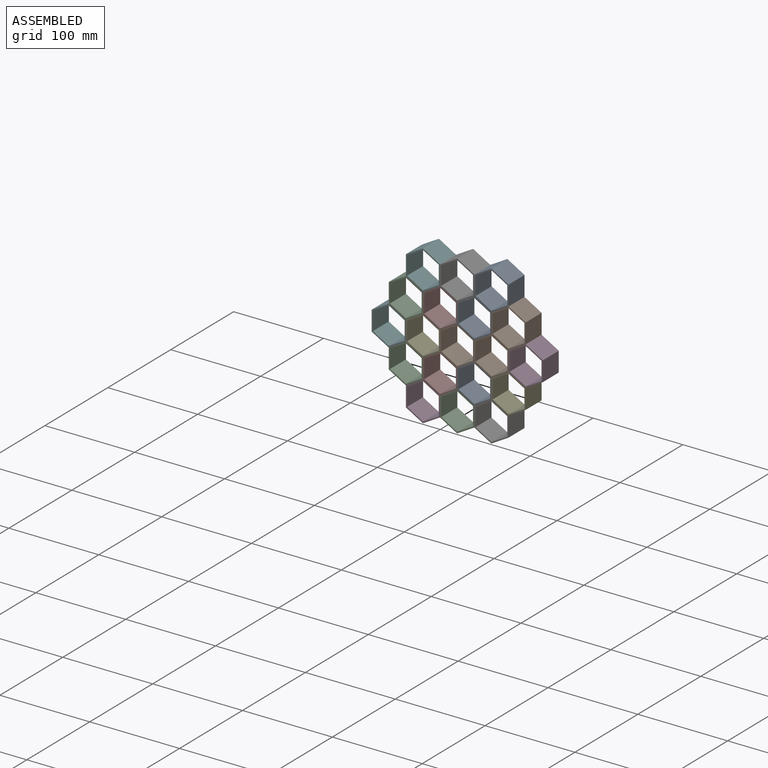
[diagram: assembled view]
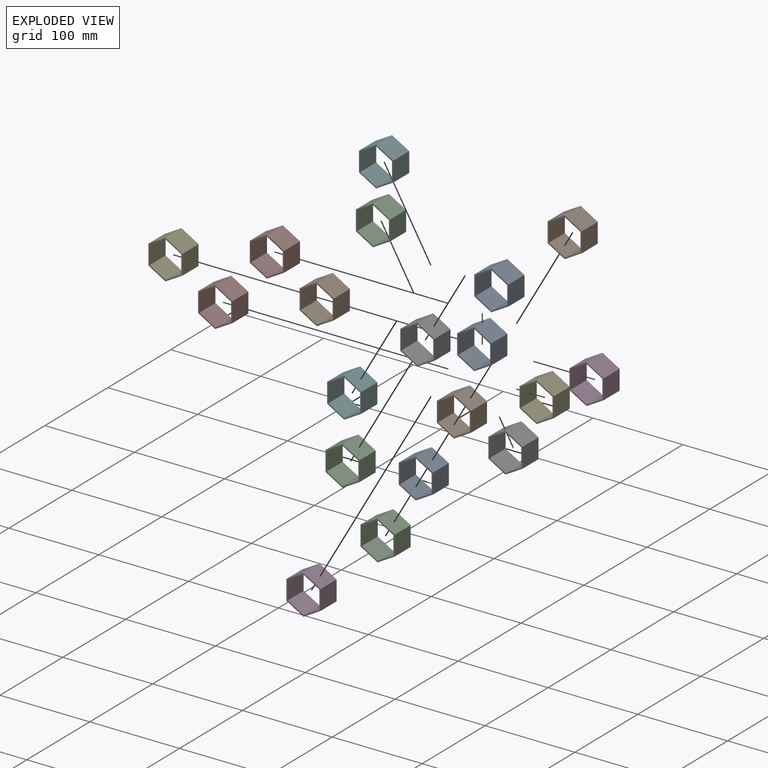
[diagram: exploded view]
GUIDED TOUR — MATED ASSEMBLY (Onshape document c763d03f4cfdfff51981331f, AutoMate assembly c763d03f4cfdfff51981331f_077219edb8f6b0382c2bcaba_419217ce89c9ab884e572cf0_default)

This assembly has 19 components, labeled P0..P18 below (a component is one placed occurrence of a part; the same part can appear more than once), held together by 18 mates. A mate is a constraint between two components; its type names the relative motion it leaves free:
  FASTENED — locks the two components together rigidly (no relative motion).
Axis/direction vectors are unit vectors and 'through' points are millimeter coordinates, both in the assembly's world frame.

MATES
  1. FASTENED "Fastened 9": P6 <-> P15, direction (-0.500, 0.000, -0.866) through (-3.93, 3.24, 49.50) mm
  2. FASTENED "Fastened 18": P4 <-> P0, direction (-1.000, 0.000, 0.000) through (43.69, 3.24, -32.99) mm
  3. FASTENED "Fastened 2": P15 <-> P17, direction (0.500, 0.000, -0.866) through (-3.93, 3.24, 16.51) mm
  4. FASTENED "Fastened 3": P9 <-> P8, direction (-0.500, 0.000, 0.866) through (34.17, 3.24, 16.51) mm
  5. FASTENED "Fastened 6": P17 <-> P0, direction (0.500, 0.000, -0.866) through (15.12, 3.24, -16.49) mm
  6. FASTENED "Fastened 4": P12 <-> P17, direction (1.000, 0.000, 0.000) through (-13.46, 3.24, 0.01) mm
  7. FASTENED "Fastened 14": P11 <-> P7, direction (0.500, 0.000, 0.866) through (-22.98, 3.24, -49.48) mm
  8. FASTENED "Fastened 7": P10 <-> P12, direction (0.500, 0.000, 0.866) through (-42.03, 3.24, -16.49) mm
  9. FASTENED "Fastened 8": P13 <-> P15, direction (0.500, 0.000, -0.866) through (-22.98, 3.24, 49.50) mm
  10. FASTENED "Fastened 11": P16 <-> P8, direction (-0.500, 0.000, -0.866) through (34.17, 3.24, 49.50) mm
  11. FASTENED "Fastened 10": P1 <-> P9, direction (-0.500, 0.000, -0.866) through (53.22, 3.24, 16.51) mm
  12. FASTENED "Fastened 12": P18 <-> P12, direction (0.500, 0.000, -0.866) through (-42.03, 3.24, 16.51) mm
  13. FASTENED "Fastened 1": P8 <-> P17, direction (-0.500, 0.000, -0.866) through (15.12, 3.24, 16.51) mm
  14. FASTENED "Fastened 15": P2 <-> P0, direction (0.500, 0.000, 0.866) through (15.12, 3.24, -49.48) mm
  15. FASTENED "Fastened 16": P14 <-> P0, direction (-0.500, 0.000, 0.866) through (34.17, 3.24, -49.48) mm
  16. FASTENED "Fastened 13": P5 <-> P18, direction (0.500, 0.000, 0.866) through (-61.08, 3.24, 16.51) mm
  17. FASTENED "Fastened 17": P3 <-> P9, direction (-1.000, 0.000, 0.000) through (62.74, 3.24, 0.01) mm
  18. FASTENED "Fastened 5": P7 <-> P12, direction (-0.500, 0.000, 0.866) through (-22.98, 3.24, -16.49) mm

ASSEMBLY ORDER
  1. P16 — the base component [order verified]
  2. P1 [order verified]
  3. P6 [order verified]
  4. P8 [order verified]
  5. P15 [order verified]
  6. P9 [order verified]
  7. P4 [order verified]
  8. P18 [order verified]
  9. P17 [order verified]
  10. P0 [order verified]
  11. P12 [order verified]
  12. P5 [order verified]
  13. P7 [order verified]
  14. P2 [order verified]
  15. P14 [order verified]
  16. P13 [order verified]
  17. P10 [order verified]
  18. P11 [order verified]
  19. P3 [order verified]
Order-tag legend:
  [order verified] — this step's position reverses a verified removal order: the component was checked to insert without passing through the ones already placed.

Of the 19 components, 19 carry the full construction recipe — the FeatureScript program that regenerates the part's solid from scratch; the rest are supplied as boundary geometry only.
Because this assembly has more than 12 components, the tour below covers the 12 most significant ones individually (every recipe-attached component first, then the largest by part volume), in assembly order; the remaining 7 are summarized together in a grouped section at the end.
Each toured component is shown spotlighted twice — in the assembled view, then in the exploded view, where a leader line traces a displaced component back to its assembled socket (saturated green if recipe-attached, orange if geometry-only; every other component desaturated gray) — followed by its recipe or geometry summary and the mates that hold it.
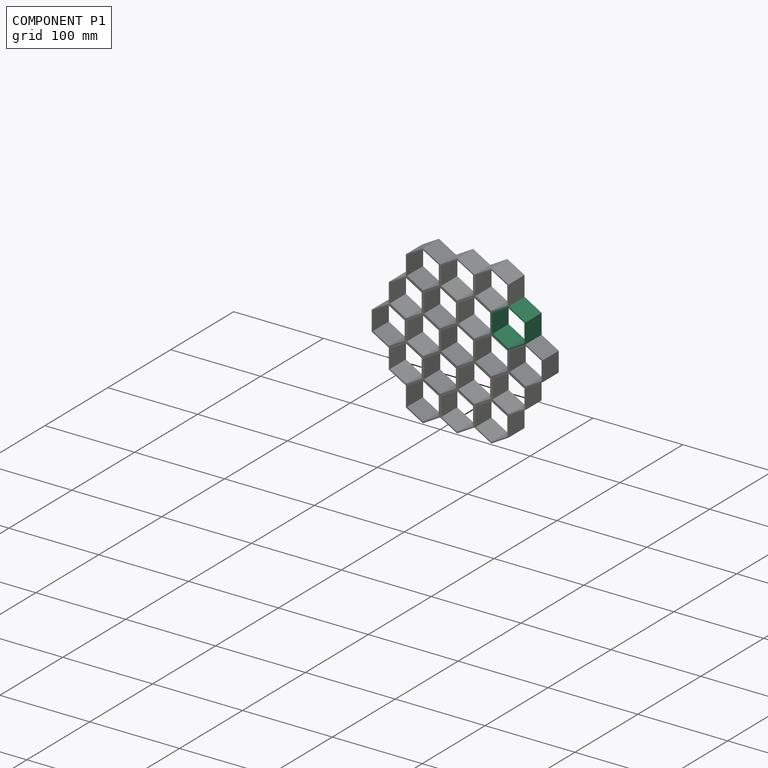
[diagram: component P1 — assembled]
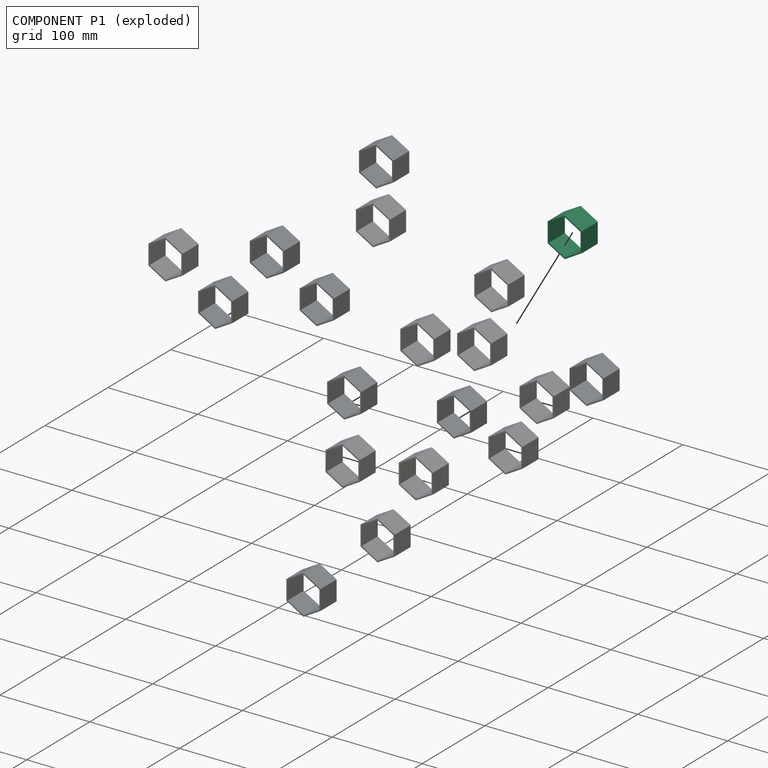
[diagram: component P1 — exploded]
COMPONENT P1 — same part as P0 (CADFS 00813958); its construction recipe is shown at P0.
Held by: FASTENED mate "Fastened 10" to P9.
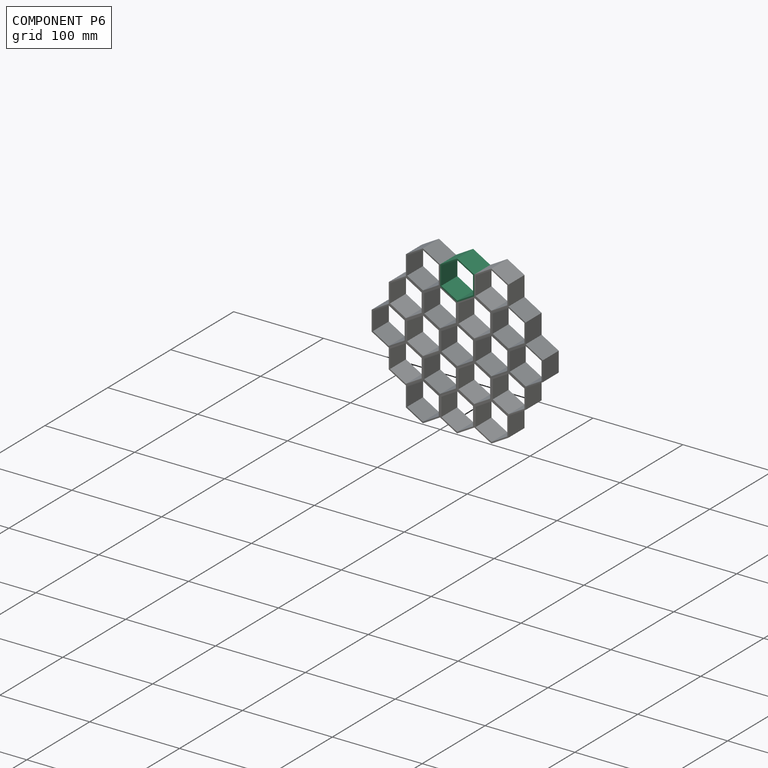
[diagram: component P6 — assembled]
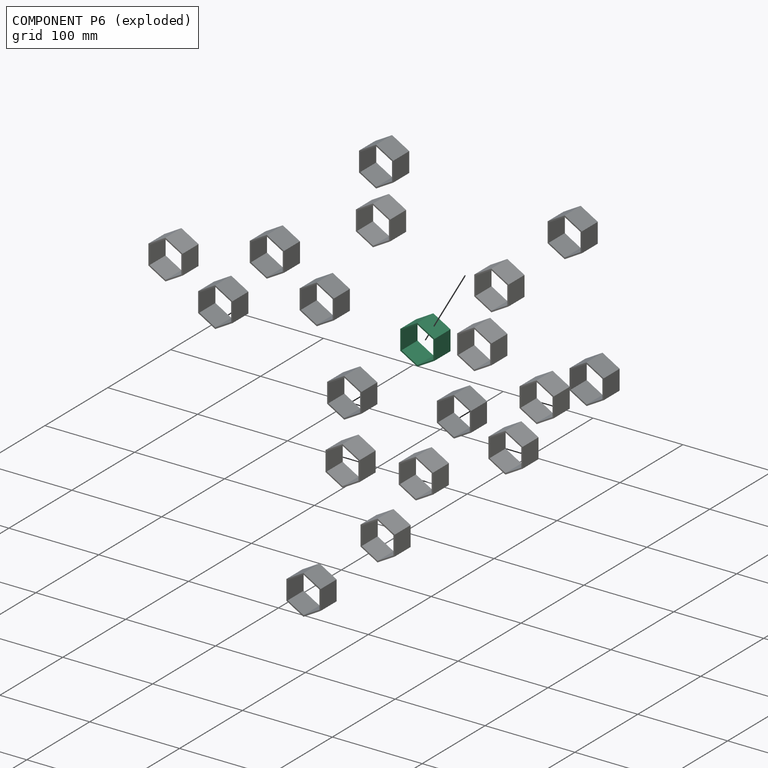
[diagram: component P6 — exploded]
COMPONENT P6 — same part as P0 (CADFS 00813958); its construction recipe is shown at P0.
Held by: FASTENED mate "Fastened 9" to P15.
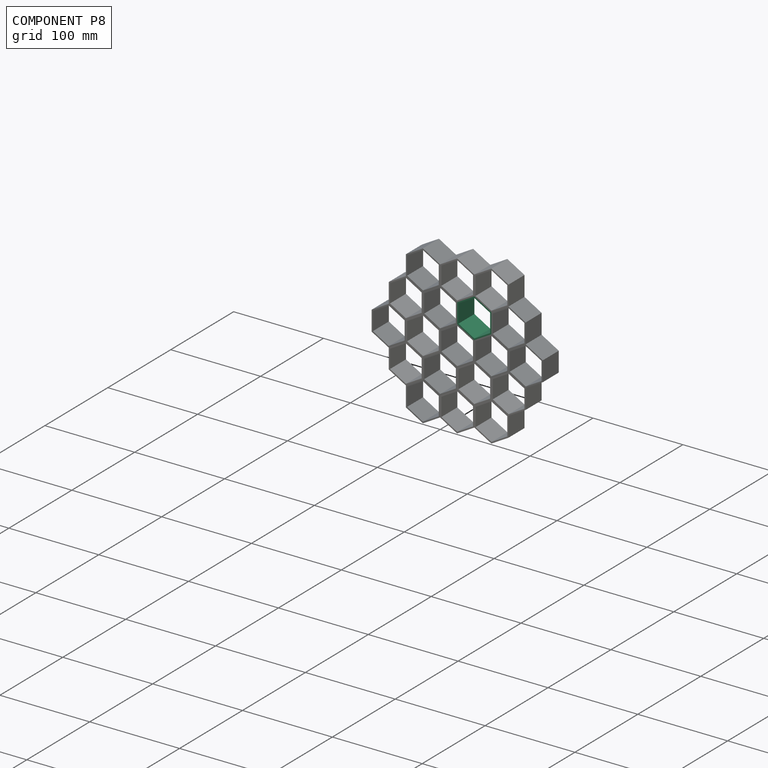
[diagram: component P8 — assembled]
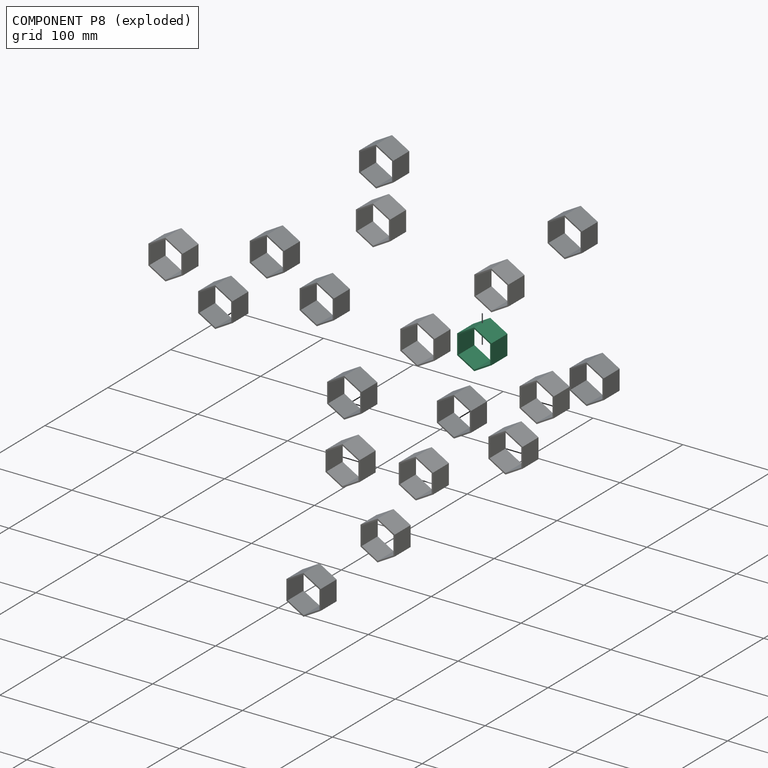
[diagram: component P8 — exploded]
COMPONENT P8 — same part as P0 (CADFS 00813958); its construction recipe is shown at P0.
Held by: FASTENED mate "Fastened 3" to P9; FASTENED mate "Fastened 11" to P16; FASTENED mate "Fastened 1" to P17.
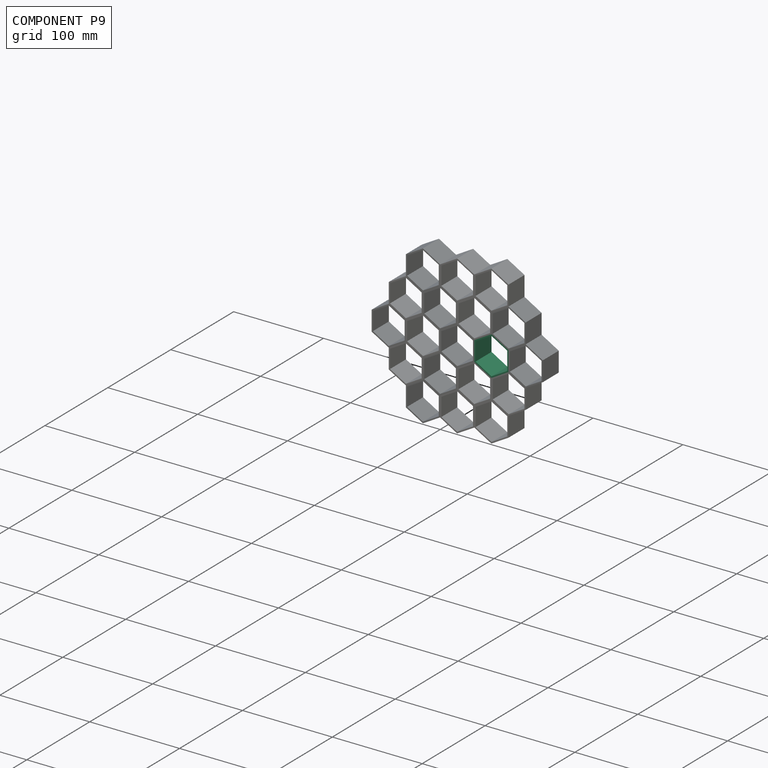
[diagram: component P9 — assembled]
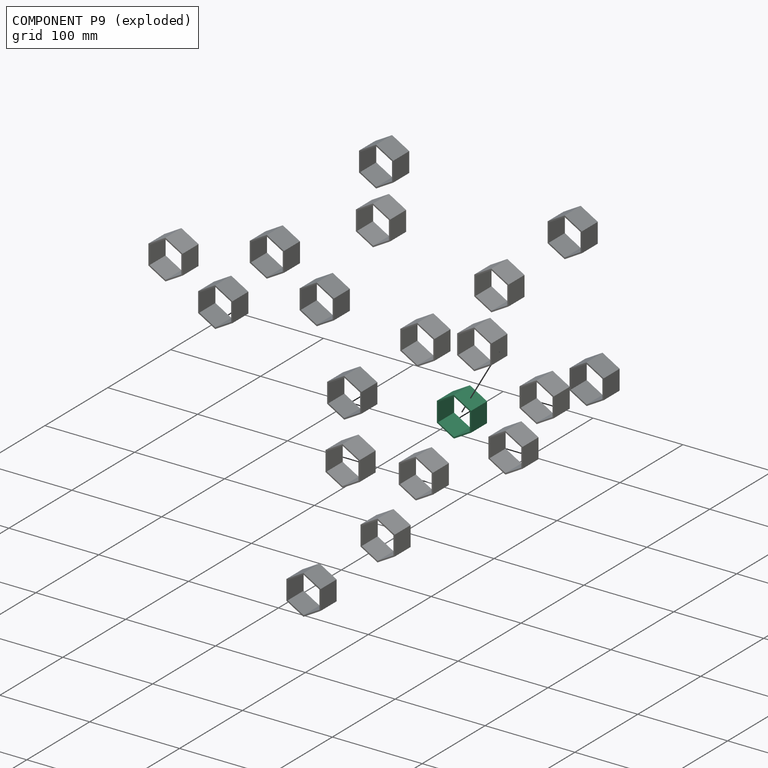
[diagram: component P9 — exploded]
COMPONENT P9 — same part as P0 (CADFS 00813958); its construction recipe is shown at P0.
Held by: FASTENED mate "Fastened 3" to P8; FASTENED mate "Fastened 10" to P1; FASTENED mate "Fastened 17" to P3.
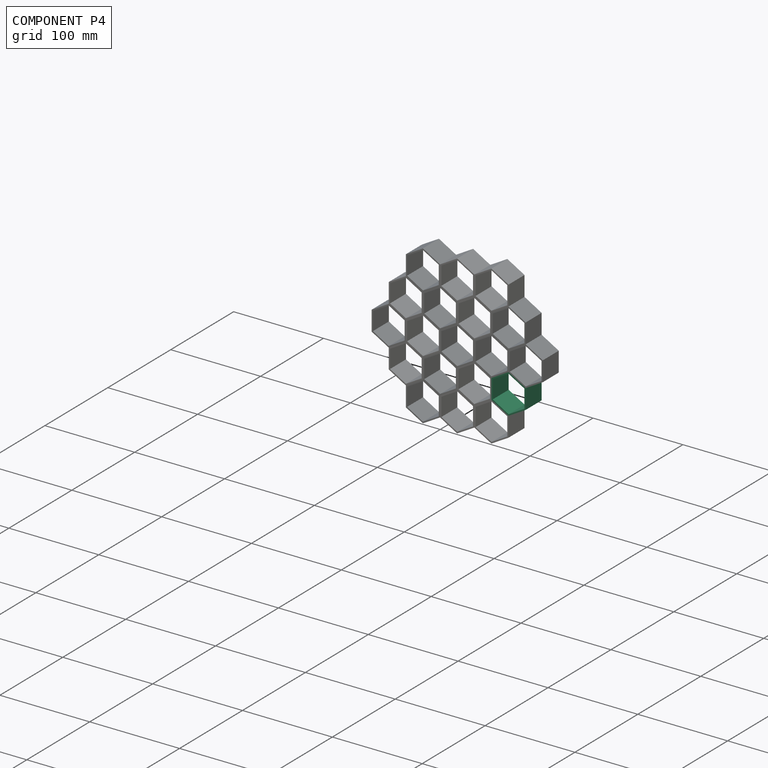
[diagram: component P4 — assembled]
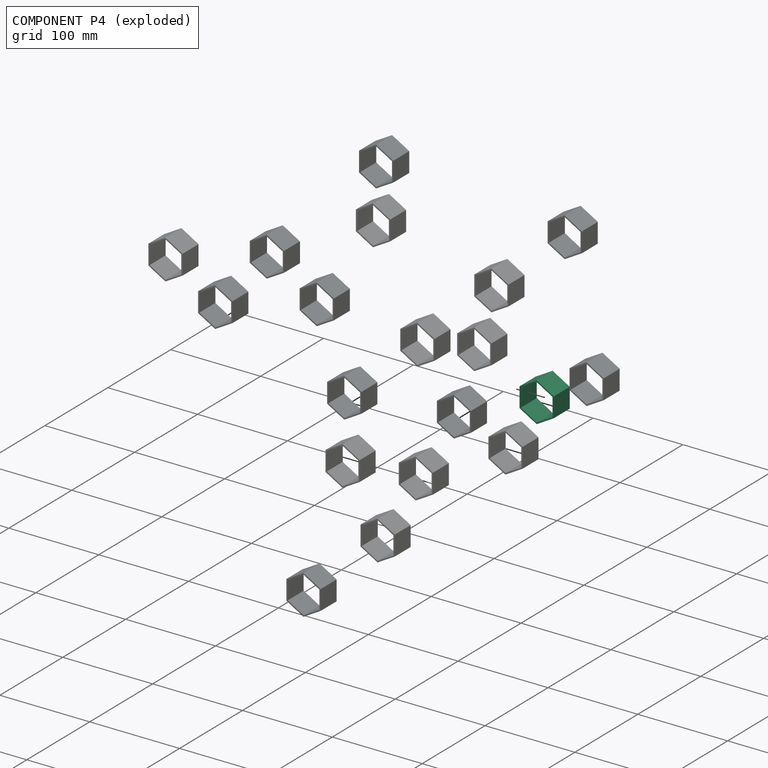
[diagram: component P4 — exploded]
COMPONENT P4 — same part as P0 (CADFS 00813958); its construction recipe is shown at P0.
Held by: FASTENED mate "Fastened 18" to P0.
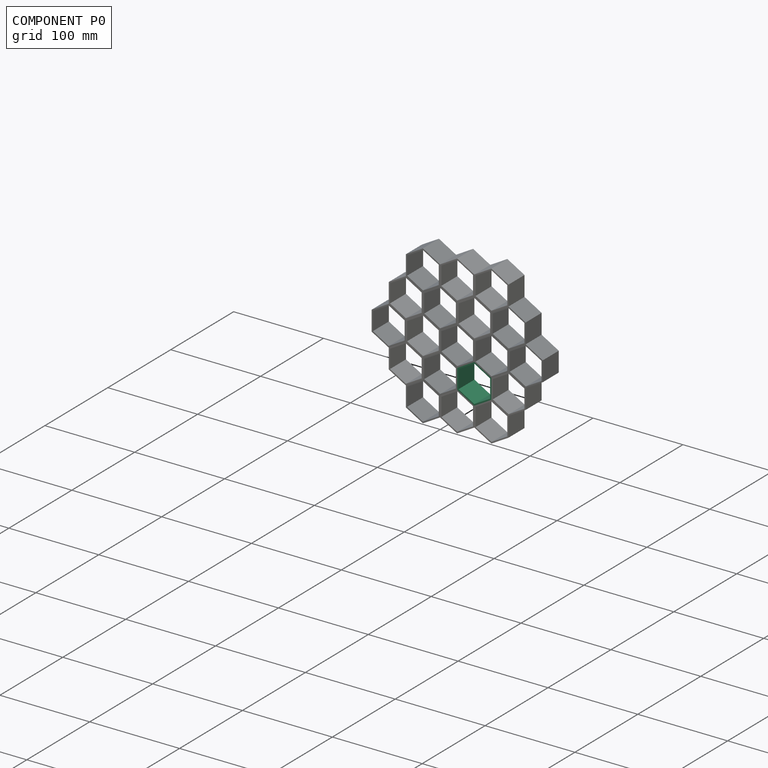
[diagram: component P0 — assembled]
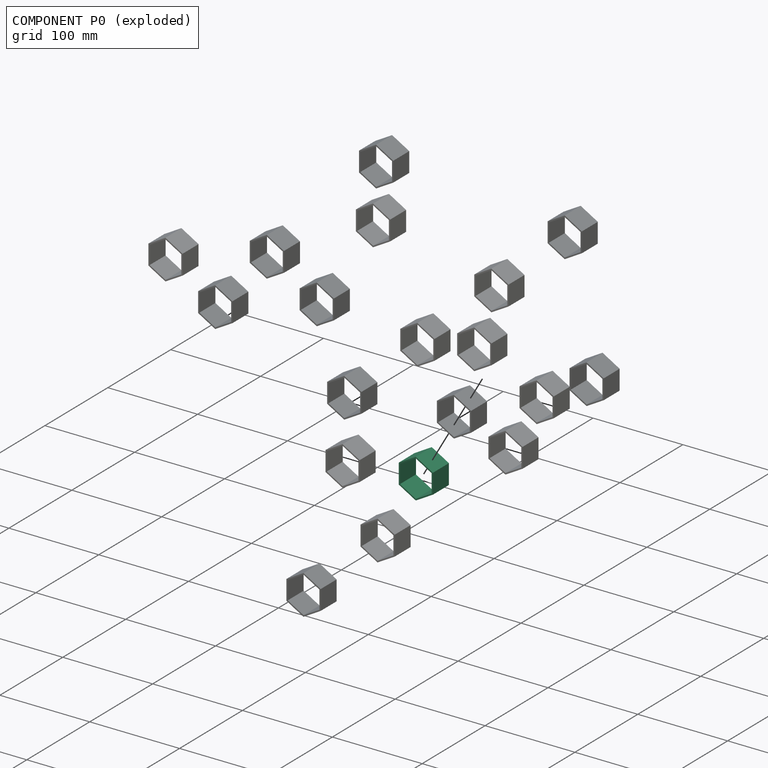
[diagram: component P0 — exploded]
COMPONENT P0 — recipe-attached (CADFS 00813958, mesh-verified: the recipe's output STEP matches this component's geometry to below the mesh-comparison resolution (tessellation chordal tolerance ~0.0952 mm)).
Held by: FASTENED mate "Fastened 18" to P4; FASTENED mate "Fastened 6" to P17; FASTENED mate "Fastened 15" to P2; FASTENED mate "Fastened 16" to P14.
Construction recipe (FeatureScript — the CAD program that rebuilds this solid; sketch coordinates are in the units given by the * unit suffixes, e.g. mm):

FeatureScript 1511;
import(path : "onshape/std/geometry.fs", version : "1511.0");
import(path : "onshape/std/common.fs", version : "1511.0");
const mm = millimeter;
const VERTEX = EntityType.VERTEX;
const EDGE = EntityType.EDGE;
const FACE = EntityType.FACE;
const BODY = EntityType.BODY;
function v(x, y){return vector(x, y);}
function OD(order){return orderDisambiguation(order);}
function OSD(set){return originalSetDisambiguation(set);}
function TD(topology){return topologyDisambiguation(topology);}
function TDD(query){return trueDependencyDisambiguation(query);}
function sQuery(a, b, c) {return sketchEntityQuery(a, b, c);}

annotation { "Feature Type Name" : "Feature", "Feature Type Description" : "" }
export const myFeature = defineFeature(function(context is Context, id is Id, definition is map)
    precondition{}
    {
        {
            var Q0;
            Q0=qCreatedBy(makeId("Front.planeOp"),FACE);
            var sketch = newSketch(context, id + "F0", { "sketchPlane" : qUnion([Q0])});
            skArc(sketch, "E0", {"start": v(-2.58, 18.87) * mm, "mid": v(-9.53, 16.5) * mm, "end": v(-15.06, 11.67) * mm});
            skPoint(sketch, "E1", {"position": v(-19.05, 0) * mm});
            skPoint(sketch, "E2", {"position": v(19.05, 0) * mm});
            skPoint(sketch, "E3", {"position": v(0, -19.05) * mm});
            skPoint(sketch, "E4", {"position": v(0, 19.05) * mm});
            skArc(sketch, "E5.cCircle", {"start": v(15.06, 11.67) * mm, "mid": v(9.52, 16.5) * mm, "end": v(2.58, 18.87) * mm, "construction": true});
            skLineSegment(sketch, "E5.0", {"start": v(-19.05, -11) * mm, "end": v(-19.05, 11) * mm});
            skLineSegment(sketch, "E5.1", {"start": v(-19.05, 11) * mm, "end": v(0, 22) * mm});
            skLineSegment(sketch, "E5.2", {"start": v(0, 22) * mm, "end": v(19.05, 11) * mm});
            skLineSegment(sketch, "E5.3", {"start": v(19.05, 11) * mm, "end": v(19.05, -11) * mm});
            skLineSegment(sketch, "E5.4", {"start": v(19.05, -11) * mm, "end": v(0, -22) * mm});
            skLineSegment(sketch, "E5.5", {"start": v(0, -22) * mm, "end": v(-19.05, -11) * mm});
            skLineSegment(sketch, "E6.0", {"start": v(-17.64, -10.18) * mm, "end": v(-17.64, 10.18) * mm});
            skLineSegment(sketch, "E6.1", {"start": v(-17.64, 10.18) * mm, "end": v(0, 20.36) * mm});
            skLineSegment(sketch, "E6.2", {"start": v(0, 20.36) * mm, "end": v(17.64, 10.18) * mm});
            skLineSegment(sketch, "E6.3", {"start": v(17.64, 10.18) * mm, "end": v(17.64, -10.18) * mm});
            skLineSegment(sketch, "E6.4", {"start": v(17.64, -10.18) * mm, "end": v(0, -20.36) * mm});
            skLineSegment(sketch, "E6.5", {"start": v(0, -20.36) * mm, "end": v(-17.64, -10.18) * mm});
            skPoint(sketch, "E6.0.midPoint", {"position": v(-17.64, 0) * mm});
            skArc(sketch, "E7.trimOffspring", {"start": v(-2.58, 18.87) * mm, "mid": v(-9.53, 16.5) * mm, "end": v(-15.06, 11.67) * mm, "construction": true});
            skArc(sketch, "E8.trimOffspring", {"start": v(2.58, -18.87) * mm, "mid": v(9.53, -16.5) * mm, "end": v(15.06, -11.67) * mm, "construction": true});
            skArc(sketch, "E9.trimOffspring", {"start": v(2.58, -18.87) * mm, "mid": v(9.53, -16.5) * mm, "end": v(15.06, -11.67) * mm});
            skArc(sketch, "E10.trimOffspring", {"start": v(-17.64, 7.2) * mm, "mid": v(-19.05, 0) * mm, "end": v(-17.64, -7.2) * mm, "construction": true});
            skArc(sketch, "E11.trimOffspring", {"start": v(-15.06, -11.67) * mm, "mid": v(-9.52, -16.5) * mm, "end": v(-2.58, -18.87) * mm, "construction": true});
            skArc(sketch, "E12.trimOffspring", {"start": v(-17.64, 7.2) * mm, "mid": v(-19.05, 0) * mm, "end": v(-17.64, -7.2) * mm});
            skArc(sketch, "E13.trimOffspring", {"start": v(-15.06, -11.67) * mm, "mid": v(-9.52, -16.5) * mm, "end": v(-2.58, -18.87) * mm});
            skArc(sketch, "E14.trimOffspring", {"start": v(17.64, -7.2) * mm, "mid": v(19.05, 0) * mm, "end": v(17.64, 7.2) * mm, "construction": true});
            skArc(sketch, "E15.trimOffspring", {"start": v(17.64, -7.2) * mm, "mid": v(19.05, 0) * mm, "end": v(17.64, 7.2) * mm});
            skArc(sketch, "E16.trimOffspring", {"start": v(15.06, 11.67) * mm, "mid": v(9.52, 16.5) * mm, "end": v(2.58, 18.87) * mm});
            skSolve(sketch);
        }
        {
            var Q0;
            Q0 = qSketchRegion(id + "F0", true);
            extrude(context, id + "F1", {"entities" : qUnion([Q0]), "depth" : 25.4 * mm, "offsetDistance" : 25.4 * mm});
        }
    });
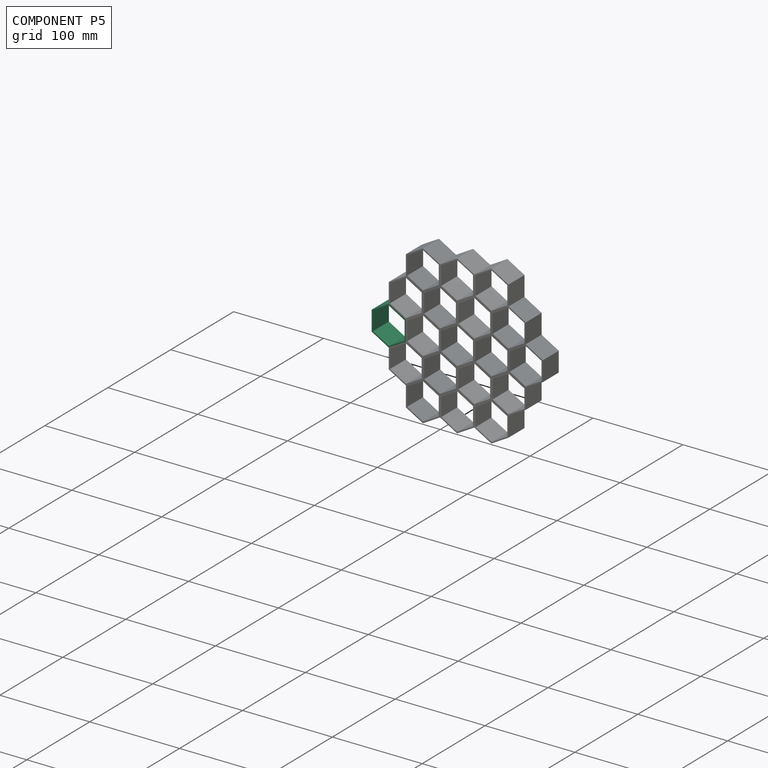
[diagram: component P5 — assembled]
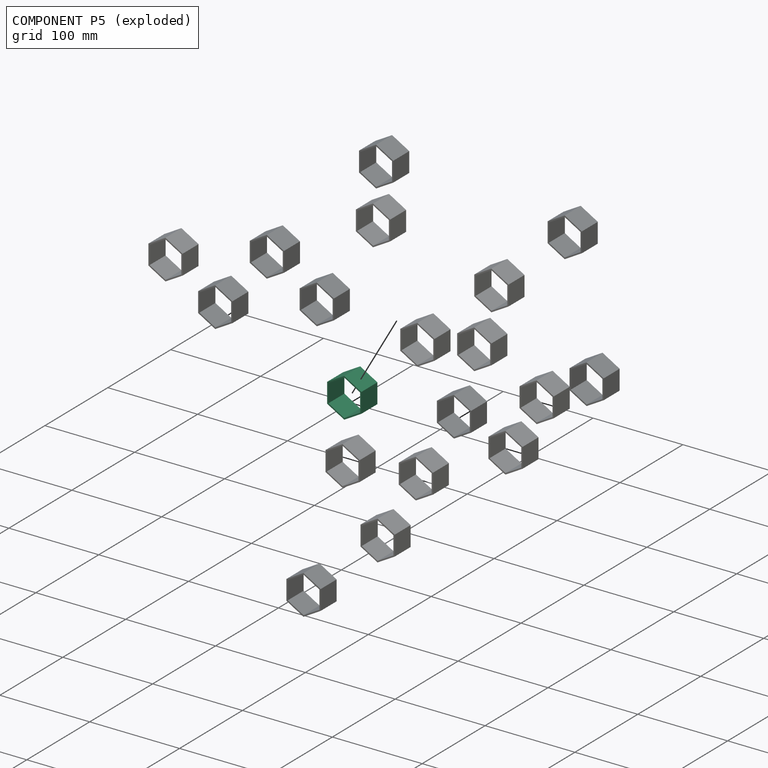
[diagram: component P5 — exploded]
COMPONENT P5 — same part as P0 (CADFS 00813958); its construction recipe is shown at P0.
Held by: FASTENED mate "Fastened 13" to P18.
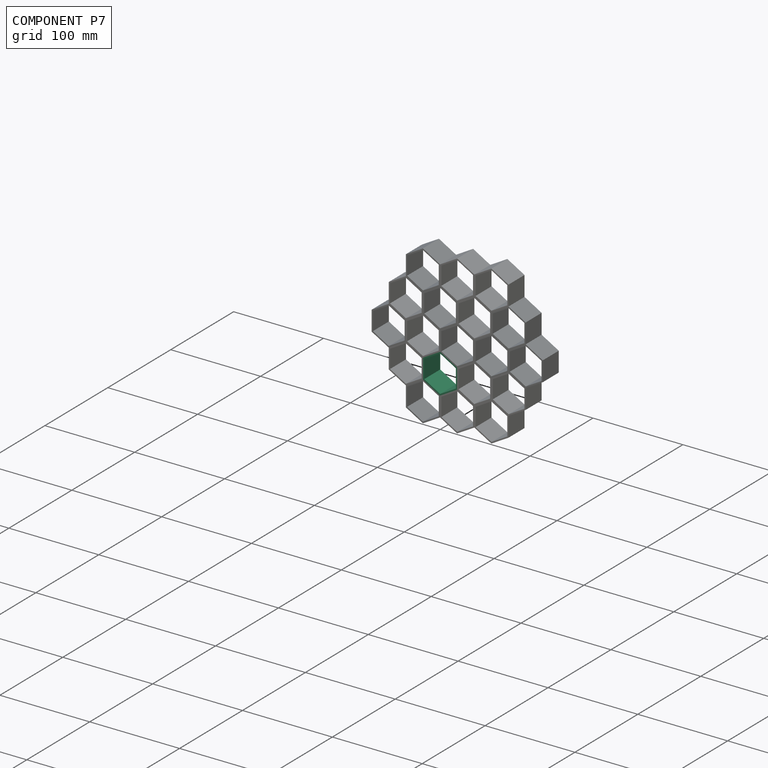
[diagram: component P7 — assembled]
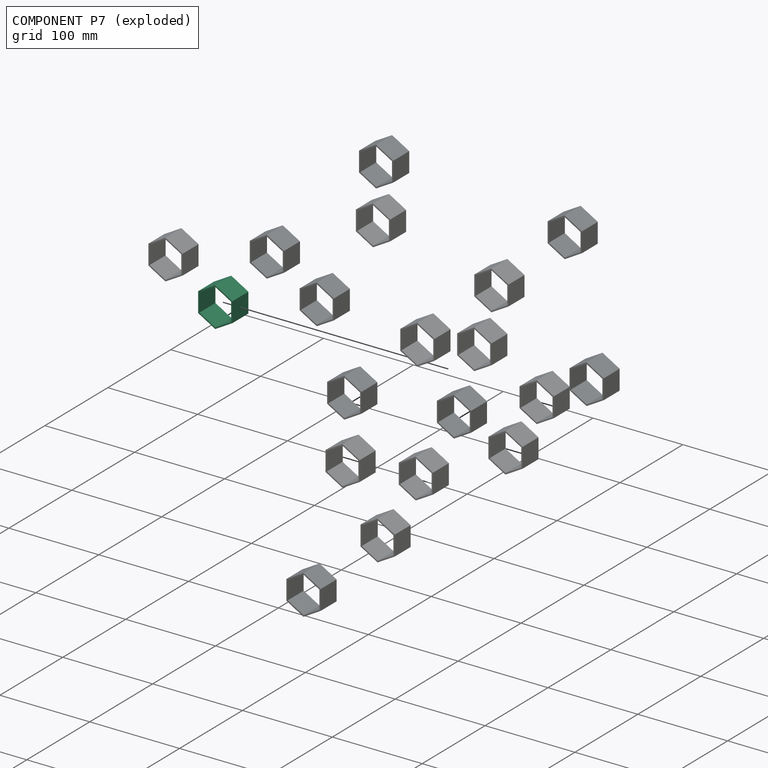
[diagram: component P7 — exploded]
COMPONENT P7 — same part as P0 (CADFS 00813958); its construction recipe is shown at P0.
Held by: FASTENED mate "Fastened 14" to P11; FASTENED mate "Fastened 5" to P12.
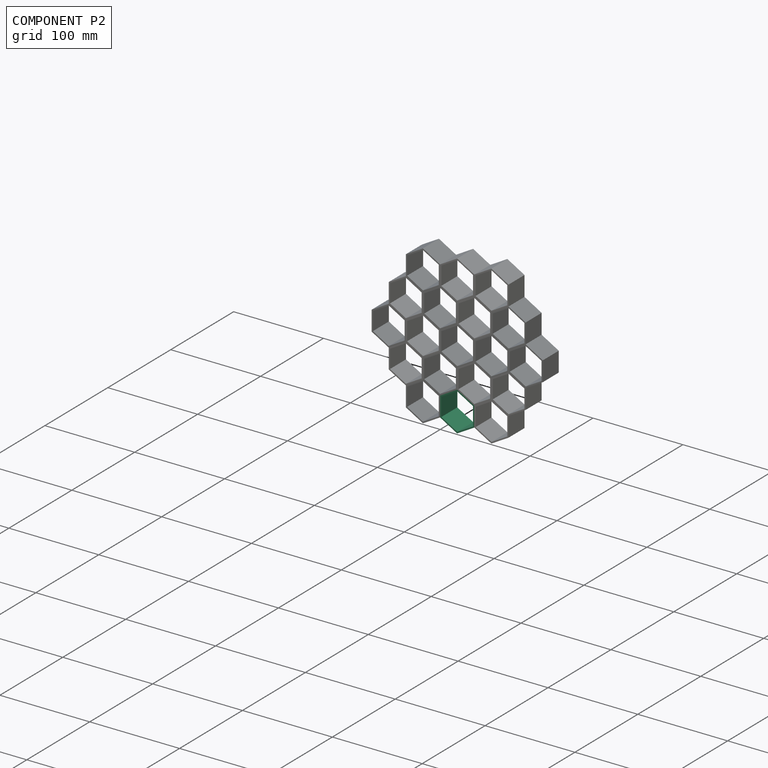
[diagram: component P2 — assembled]
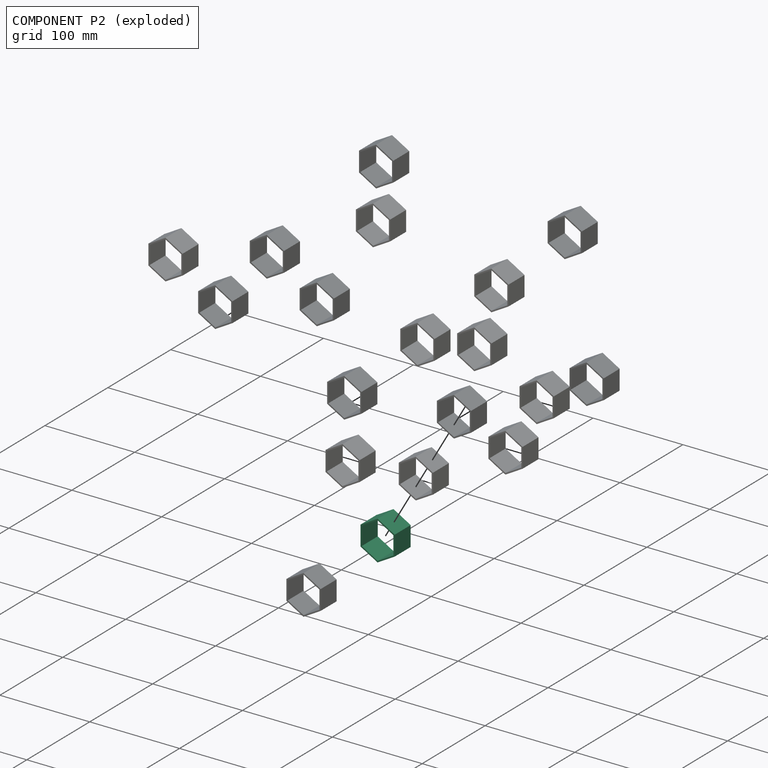
[diagram: component P2 — exploded]
COMPONENT P2 — same part as P0 (CADFS 00813958); its construction recipe is shown at P0.
Held by: FASTENED mate "Fastened 15" to P0.
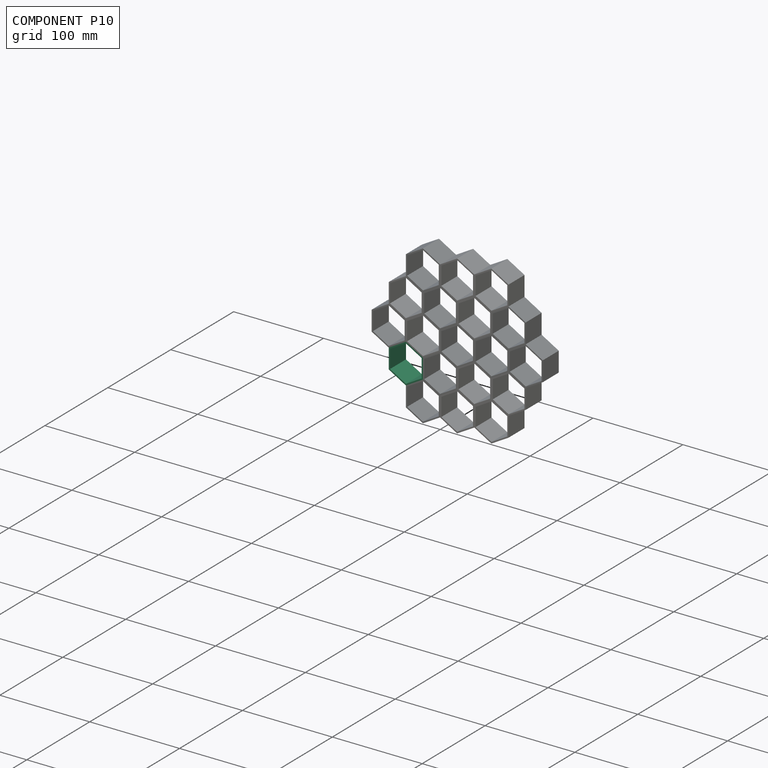
[diagram: component P10 — assembled]
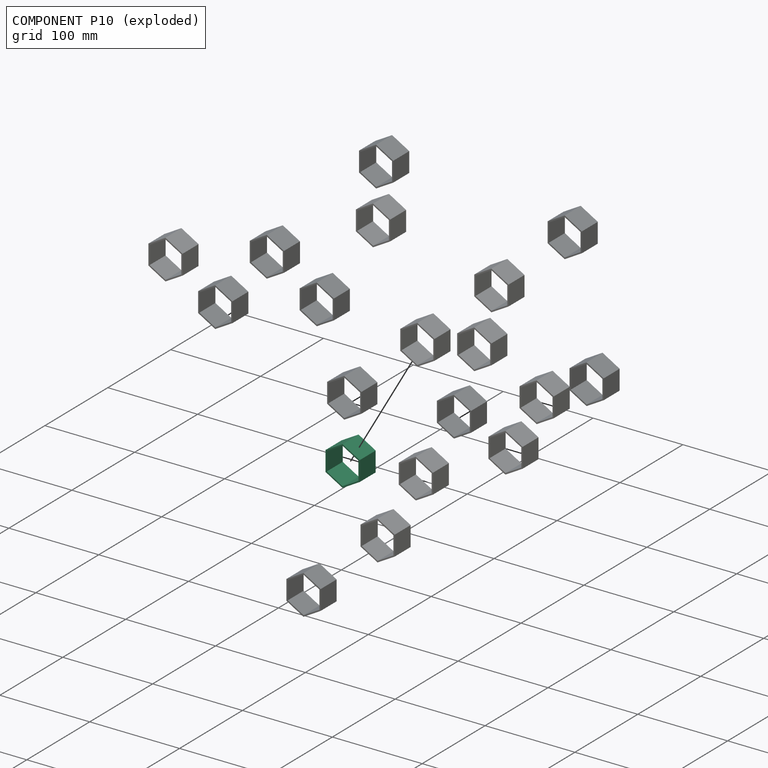
[diagram: component P10 — exploded]
COMPONENT P10 — same part as P0 (CADFS 00813958); its construction recipe is shown at P0.
Held by: FASTENED mate "Fastened 7" to P12.
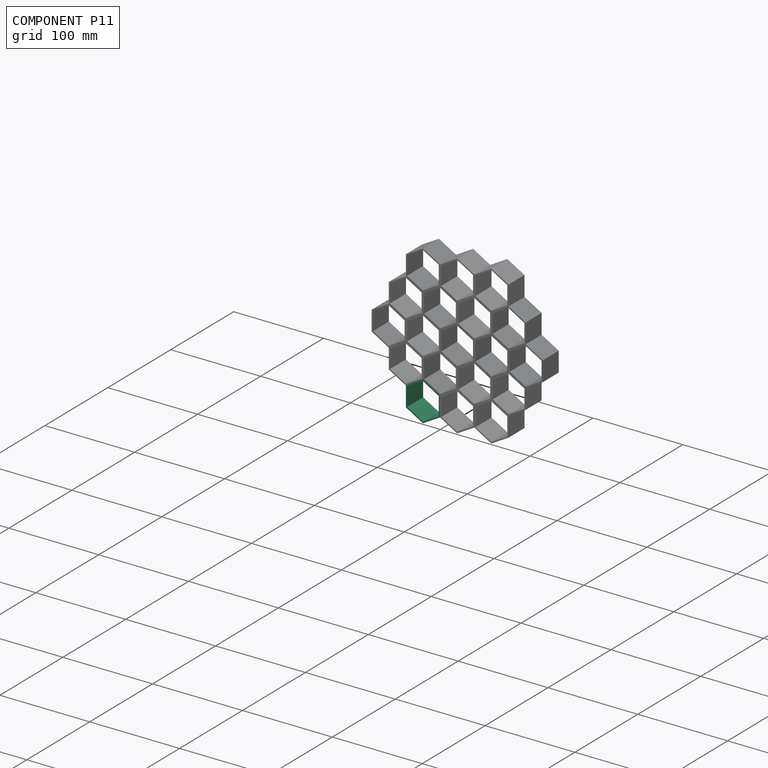
[diagram: component P11 — assembled]
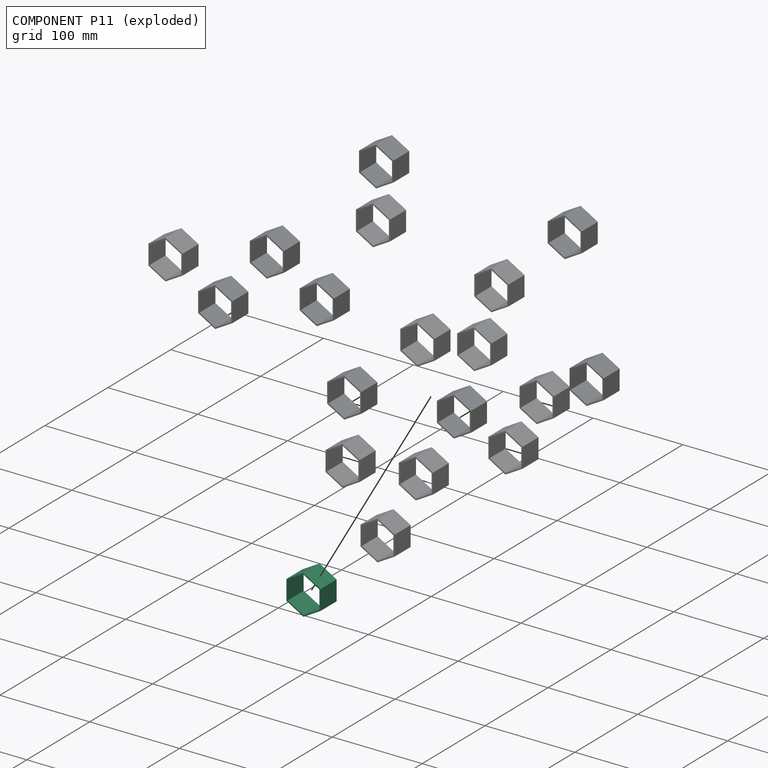
[diagram: component P11 — exploded]
COMPONENT P11 — same part as P0 (CADFS 00813958); its construction recipe is shown at P0.
Held by: FASTENED mate "Fastened 14" to P7.
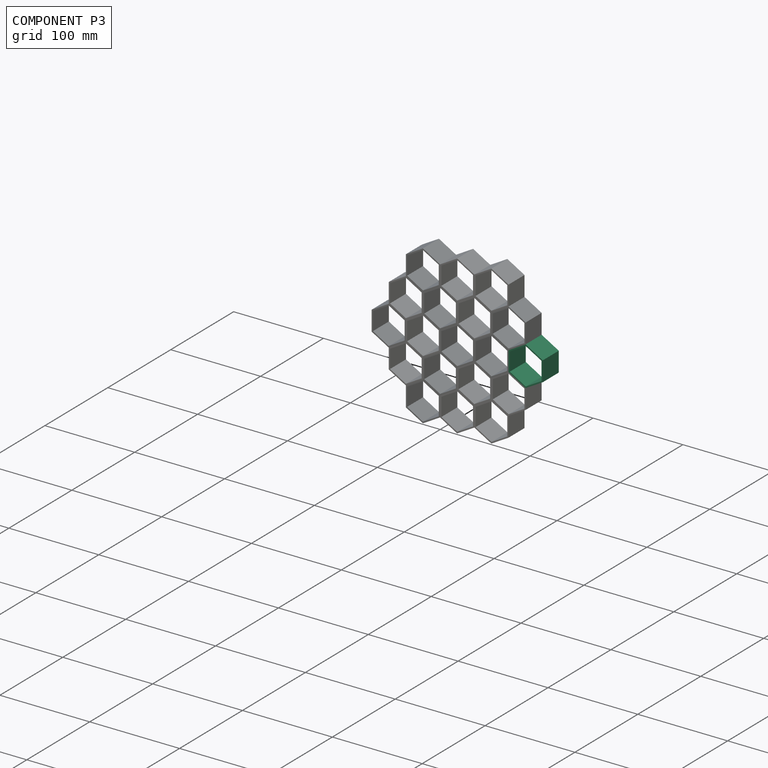
[diagram: component P3 — assembled]
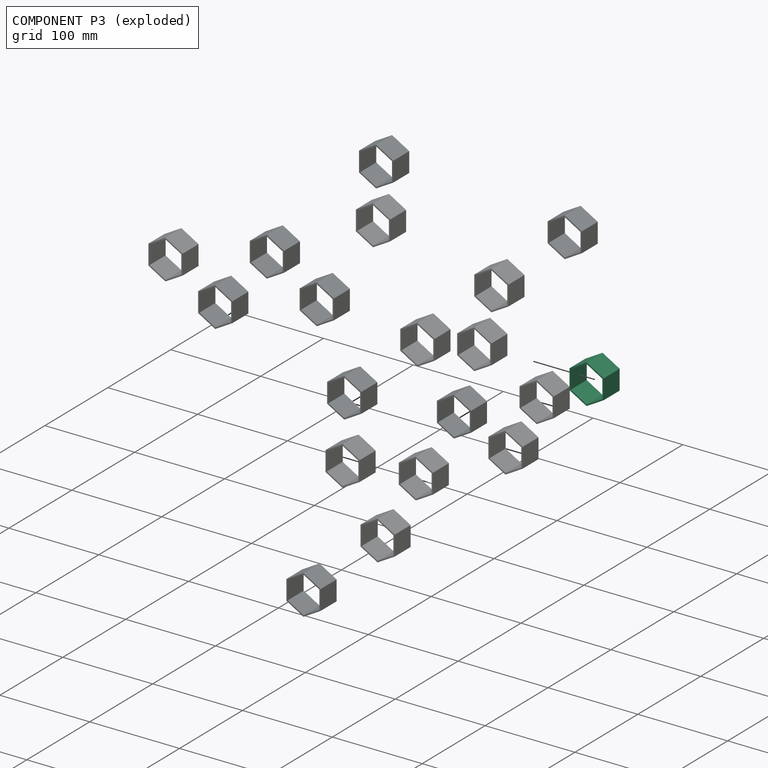
[diagram: component P3 — exploded]
COMPONENT P3 — same part as P0 (CADFS 00813958); its construction recipe is shown at P0.
Held by: FASTENED mate "Fastened 17" to P9.
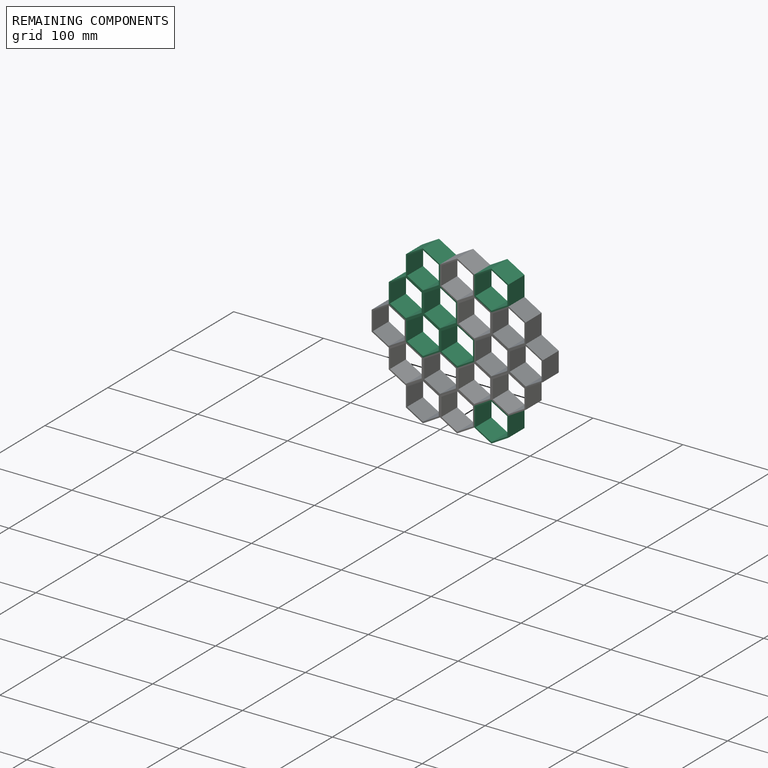
[diagram: remaining components — assembled]
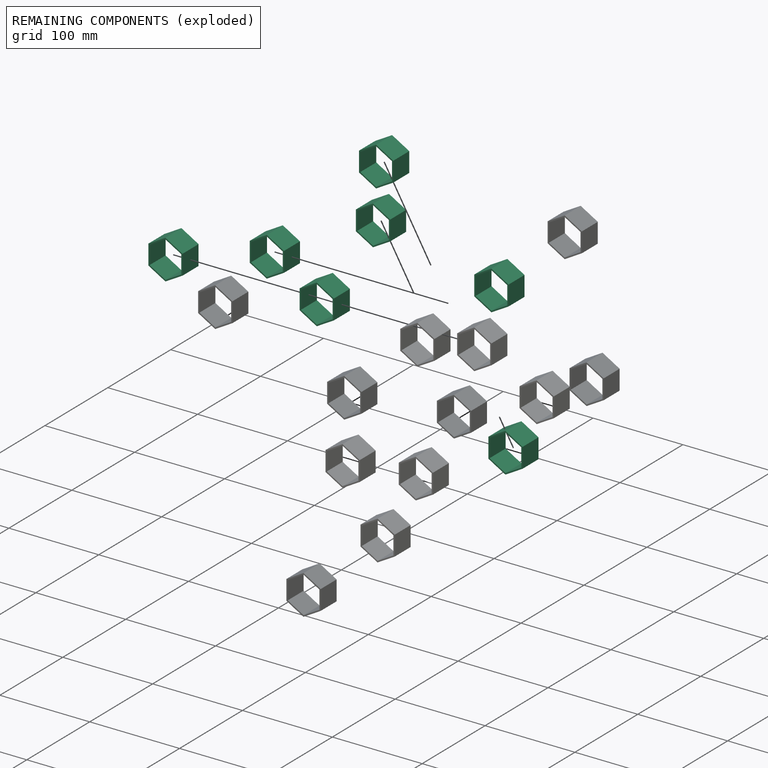
[diagram: remaining components — exploded]
REMAINING COMPONENTS (grouped) — the 7 components below fall outside the per-component tour by the significance rule stated above; both spotlight views highlight the whole group.
  P16: bounding box 44.0 x 38.1 x 25.4 mm, volume 4567 mm^3. Recipe-attached (CADFS 00813958; recipe not printed under the significance rule). Held by: FASTENED mate "Fastened 11" to P8.
  P15: bounding box 44.0 x 38.1 x 25.4 mm, volume 4567 mm^3. Recipe-attached (CADFS 00813958; recipe not printed under the significance rule). Held by: FASTENED mate "Fastened 9" to P6; FASTENED mate "Fastened 2" to P17; FASTENED mate "Fastened 8" to P13.
  P18: bounding box 44.0 x 38.1 x 25.4 mm, volume 4567 mm^3. Recipe-attached (CADFS 00813958; recipe not printed under the significance rule). Held by: FASTENED mate "Fastened 12" to P12; FASTENED mate "Fastened 13" to P5.
  P17: bounding box 44.0 x 38.1 x 25.4 mm, volume 4567 mm^3. Recipe-attached (CADFS 00813958; recipe not printed under the significance rule). Held by: FASTENED mate "Fastened 2" to P15; FASTENED mate "Fastened 6" to P0; FASTENED mate "Fastened 4" to P12; FASTENED mate "Fastened 1" to P8.
  P12: bounding box 44.0 x 38.1 x 25.4 mm, volume 4567 mm^3. Recipe-attached (CADFS 00813958; recipe not printed under the significance rule). Held by: FASTENED mate "Fastened 4" to P17; FASTENED mate "Fastened 7" to P10; FASTENED mate "Fastened 12" to P18; FASTENED mate "Fastened 5" to P7.
  P14: bounding box 44.0 x 38.1 x 25.4 mm, volume 4567 mm^3. Recipe-attached (CADFS 00813958; recipe not printed under the significance rule). Held by: FASTENED mate "Fastened 16" to P0.
  P13: bounding box 44.0 x 38.1 x 25.4 mm, volume 4567 mm^3. Recipe-attached (CADFS 00813958; recipe not printed under the significance rule). Held by: FASTENED mate "Fastened 8" to P15.
PROVENANCE & LICENSES
Assembly (occurrences, transforms, mates, per-part STEP geometry): AutoMate dataset, Zenodo record 7776208, CC0.
Construction recipes: CADFS (HuggingFace VladPyatov/CADFS, CC-BY-4.0, layered over the ABC dataset), FeatureScript reconstruction programs keyed by ABC model id.
Join: ABC meta listings map ABC model id -> Onshape documentId; within a shared document, parts are matched by geometric signature (bounding-box dims + volume at 0.1% relative tolerance, exact B-rep face/solid counts).
Verification: 19 of this assembly's 19 components carry a recipe attachment, and every attachment is mesh-verified: the CADFS STEP and the AutoMate member STEP were compared as meshes in their shared local frame (symmetric sampled-point-to-mesh distance); worst across the 19 attachments: below the mesh-comparison resolution (tessellation chordal tolerance ~0.0952 mm) on a 63 mm part.
Renders: orthographic iso camera (az 35 / el 25); the floor grid conveys scale (grid pitch printed in each image; no ruler). In the exploded view each component is displaced by its stored offset vector: the offsets alone carry the explosion direction (mate normal/axis signs are not orientation cues and do not encode it), and separation distances are assigned per mate-chain, not proportionally to assembly-order depth.
